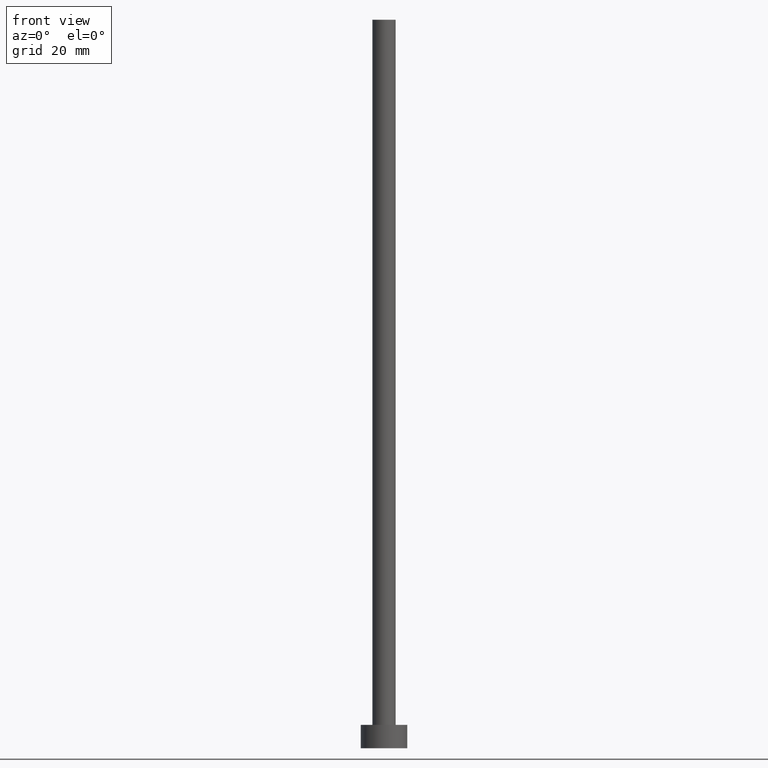
[diagram: clean part render]
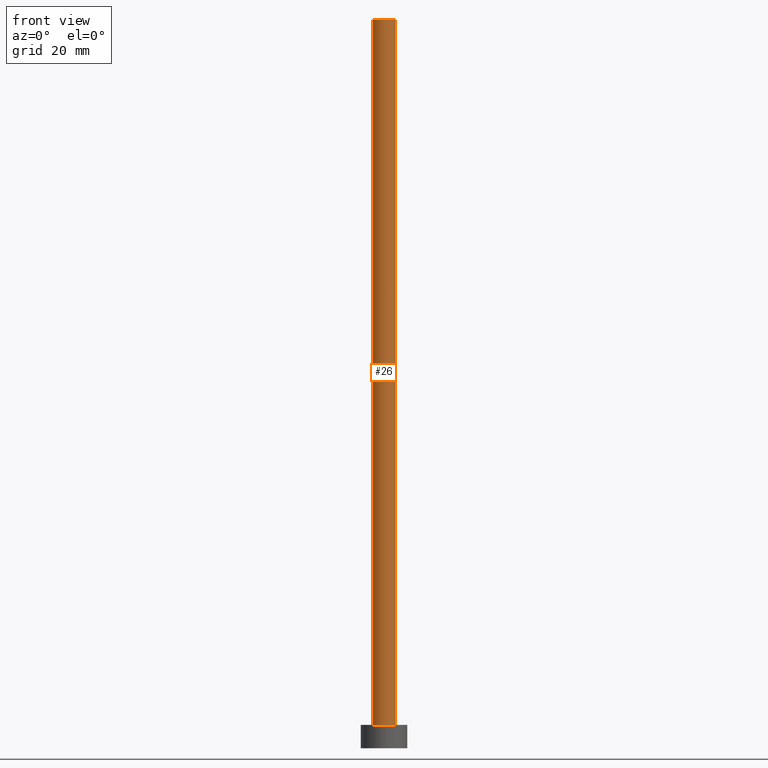
[diagram: same view with one face highlighted and labeled with its STEP entity id]
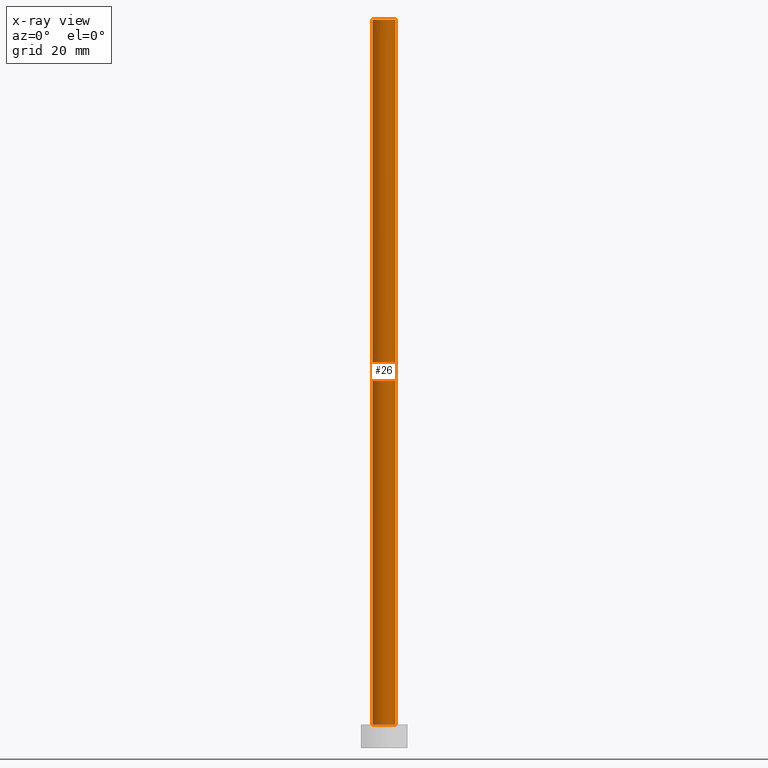
[diagram: x-ray of the same camera — body ghosted, the highlighted face saturated]
A machine part, front view. The second image highlights one B-rep face of the part: STEP entity #26.
The next image is the same camera in x-ray: the body ghosted, the highlighted face saturated — about 0% of this face is hidden behind the body in this view.
In plain terms, the highlighted cylindrical surface (edge-blend (fillet) strip) has radius 2 mm, axis along (-0, -0, -1).
Its self-contained STEP definition (entity closure, byte-faithful):
#2 = VERTEX_POINT ( 'NONE', #146 ) ;
#3 = EDGE_CURVE ( 'NONE', #242, #41, #128, .T. ) ;
#6 = CARTESIAN_POINT ( 'NONE',  ( 0.000000000000000000, 0.000000000000000000, 125.0000000000000000 ) ) ;
#8 = CARTESIAN_POINT ( 'NONE',  ( 2.000000000000000000, 2.449293598294706414E-16, 125.0000000000000000 ) ) ;
#10 = EDGE_LOOP ( 'NONE', ( #176, #30, #162, #202 ) ) ;
#11 = LINE ( 'NONE', #8, #114 ) ;
#26 = ADVANCED_FACE ( 'NONE', ( #178 ), #113, .T. ) ;
#30 = ORIENTED_EDGE ( 'NONE', *, *, #137, .F. ) ;
#35 = DIRECTION ( 'NONE',  ( 1.000000000000000000, 0.000000000000000000, 0.000000000000000000 ) ) ;
#41 = VERTEX_POINT ( 'NONE', #50 ) ;
#42 = DIRECTION ( 'NONE',  ( 1.000000000000000000, 0.000000000000000000, 0.000000000000000000 ) ) ;
#45 = AXIS2_PLACEMENT_3D ( 'NONE', #6, #144, #173 ) ;
#50 = CARTESIAN_POINT ( 'NONE',  ( 2.000000000000000000, 2.449293598294706414E-16, 4.000000000000000000 ) ) ;
#78 = VERTEX_POINT ( 'NONE', #171 ) ;
#84 = EDGE_CURVE ( 'NONE', #2, #242, #149, .T. ) ;
#91 = DIRECTION ( 'NONE',  ( 0.000000000000000000, 0.000000000000000000, 1.000000000000000000 ) ) ;
#113 = CYLINDRICAL_SURFACE ( 'NONE', #45, 2.000000000000000000 ) ;
#114 = VECTOR ( 'NONE', #139, 1000.000000000000000 ) ;
#128 = CIRCLE ( 'NONE', #180, 2.000000000000000000 ) ;
#137 = EDGE_CURVE ( 'NONE', #2, #78, #218, .T. ) ;
#139 = DIRECTION ( 'NONE',  ( -0.000000000000000000, -0.000000000000000000, -1.000000000000000000 ) ) ;
#144 = DIRECTION ( 'NONE',  ( -0.000000000000000000, -0.000000000000000000, -1.000000000000000000 ) ) ;
#146 = CARTESIAN_POINT ( 'NONE',  ( -2.000000000000000000, 0.000000000000000000, 125.0000000000000000 ) ) ;
#149 = LINE ( 'NONE', #253, #230 ) ;
#161 = CARTESIAN_POINT ( 'NONE',  ( -2.000000000000000000, 0.000000000000000000, 4.000000000000000000 ) ) ;
#162 = ORIENTED_EDGE ( 'NONE', *, *, #84, .T. ) ;
#163 = AXIS2_PLACEMENT_3D ( 'NONE', #181, #197, #42 ) ;
#171 = CARTESIAN_POINT ( 'NONE',  ( 2.000000000000000000, 2.449293598294706414E-16, 125.0000000000000000 ) ) ;
#173 = DIRECTION ( 'NONE',  ( -1.000000000000000000, 0.000000000000000000, 0.000000000000000000 ) ) ;
#176 = ORIENTED_EDGE ( 'NONE', *, *, #225, .F. ) ;
#178 = FACE_OUTER_BOUND ( 'NONE', #10, .T. ) ;
#180 = AXIS2_PLACEMENT_3D ( 'NONE', #234, #91, #35 ) ;
#181 = CARTESIAN_POINT ( 'NONE',  ( 0.000000000000000000, 0.000000000000000000, 125.0000000000000000 ) ) ;
#197 = DIRECTION ( 'NONE',  ( 0.000000000000000000, 0.000000000000000000, 1.000000000000000000 ) ) ;
#202 = ORIENTED_EDGE ( 'NONE', *, *, #3, .T. ) ;
#218 = CIRCLE ( 'NONE', #163, 2.000000000000000000 ) ;
#225 = EDGE_CURVE ( 'NONE', #78, #41, #11, .T. ) ;
#230 = VECTOR ( 'NONE', #251, 1000.000000000000000 ) ;
#234 = CARTESIAN_POINT ( 'NONE',  ( 0.000000000000000000, 0.000000000000000000, 4.000000000000000000 ) ) ;
#242 = VERTEX_POINT ( 'NONE', #161 ) ;
#251 = DIRECTION ( 'NONE',  ( -0.000000000000000000, -0.000000000000000000, -1.000000000000000000 ) ) ;
#253 = CARTESIAN_POINT ( 'NONE',  ( -2.000000000000000000, 0.000000000000000000, 125.0000000000000000 ) ) ;